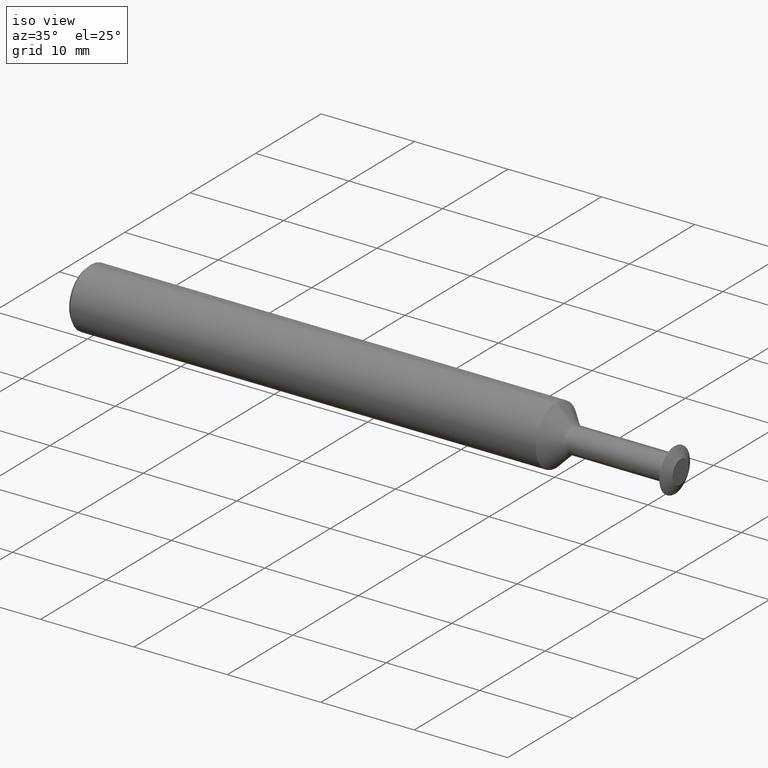
[diagram: clean part render]
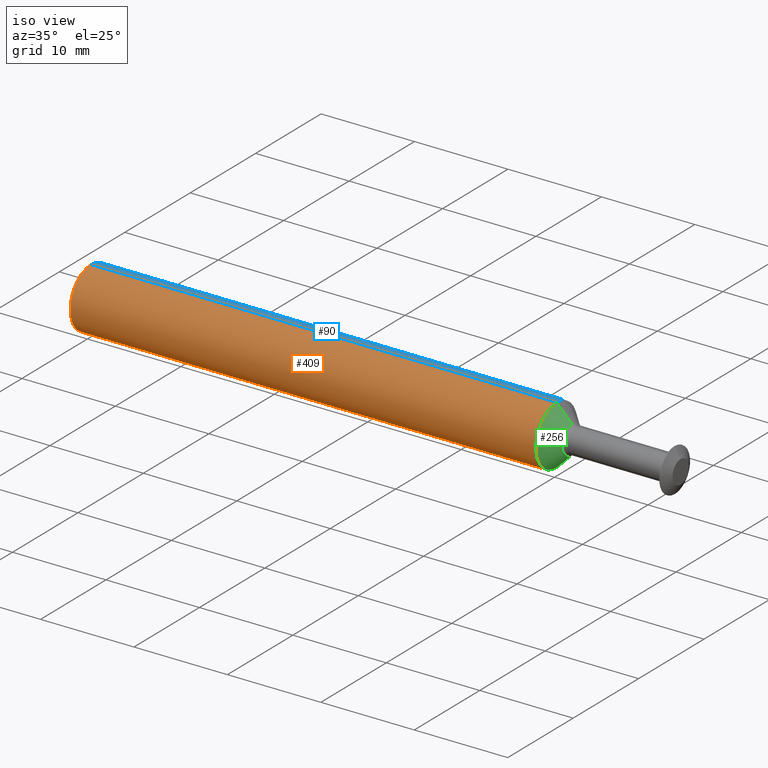
[diagram: same view with three faces highlighted in distinct colors, each labeled with its STEP entity id]
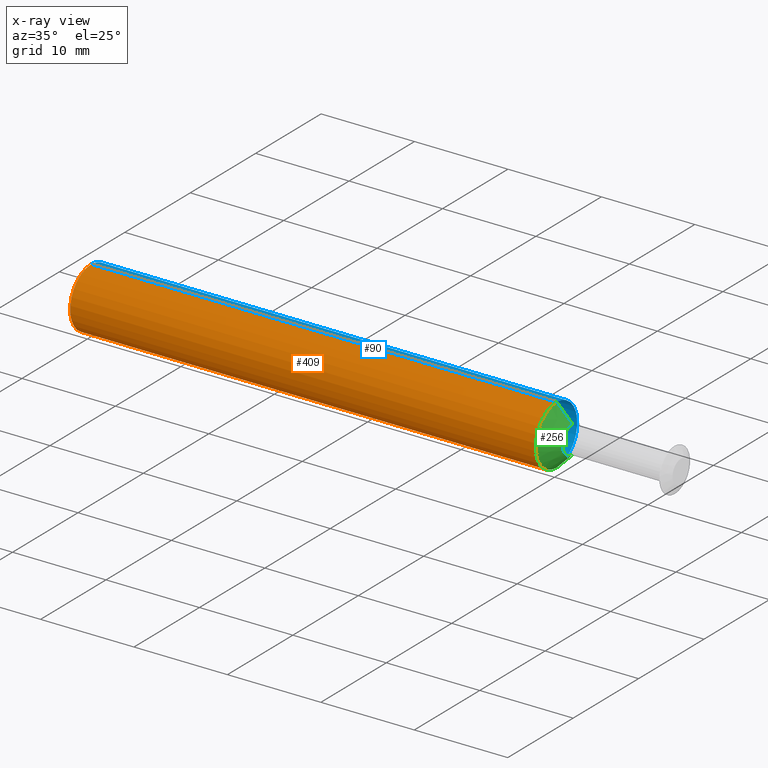
[diagram: x-ray of the same camera — body ghosted, the three highlighted faces saturated]
A machine part, iso view with three faces highlighted in distinct colors.
The next image is the same camera in x-ray (body ghosted, the three faces saturated) — at least one of them is partly hidden behind the body in this view.
Their STEP definitions:

[orange] entity #409 — the highlighted cylindrical surface (edge-blend (fillet) strip) has radius 3.1712 mm, axis along (-1, -0, -0).
#6 = DIRECTION ( 'NONE',  ( -1.000000000000000000, -0.0000000000000000000, -0.0000000000000000000 ) ) ;
#32 = DIRECTION ( 'NONE',  ( -1.000000000000000000, -0.0000000000000000000, -0.0000000000000000000 ) ) ;
#36 = CYLINDRICAL_SURFACE ( 'NONE', #224, 0.1248500000000000026 ) ;
#49 = DIRECTION ( 'NONE',  ( -1.000000000000000000, -0.0000000000000000000, -0.0000000000000000000 ) ) ;
#74 = CARTESIAN_POINT ( 'NONE',  ( 1.976797675422181433, 0.0000000000000000000, 0.0000000000000000000 ) ) ;
#86 = CARTESIAN_POINT ( 'NONE',  ( 0.01500000000000024925, 0.0000000000000000000, 0.1248500000000000026 ) ) ;
#100 = CARTESIAN_POINT ( 'NONE',  ( 1.976797675422181433, 1.528971528735470422E-17, -0.1248500000000000026 ) ) ;
#105 = EDGE_LOOP ( 'NONE', ( #450, #346, #376, #125 ) ) ;
#125 = ORIENTED_EDGE ( 'NONE', *, *, #456, .T. ) ;
#129 = CARTESIAN_POINT ( 'NONE',  ( 1.976797675422181433, 0.0000000000000000000, 0.1248500000000000026 ) ) ;
#142 = DIRECTION ( 'NONE',  ( -1.000000000000000000, -0.0000000000000000000, -0.0000000000000000000 ) ) ;
#147 = LINE ( 'NONE', #251, #217 ) ;
#150 = VERTEX_POINT ( 'NONE', #100 ) ;
#151 = EDGE_CURVE ( 'NONE', #272, #283, #488, .T. ) ;
#191 = DIRECTION ( 'NONE',  ( 0.0000000000000000000, 0.0000000000000000000, 1.000000000000000000 ) ) ;
#217 = VECTOR ( 'NONE', #49, 39.37007874015748143 ) ;
#224 = AXIS2_PLACEMENT_3D ( 'NONE', #433, #32, #372 ) ;
#246 = CARTESIAN_POINT ( 'NONE',  ( 0.01500000000000024925, 1.528971528735470422E-17, -0.1248500000000000026 ) ) ;
#251 = CARTESIAN_POINT ( 'NONE',  ( 0.0000000000000000000, 1.528971528735470422E-17, -0.1248500000000000026 ) ) ;
#266 = DIRECTION ( 'NONE',  ( 1.000000000000000000, 0.0000000000000000000, 0.0000000000000000000 ) ) ;
#272 = VERTEX_POINT ( 'NONE', #129 ) ;
#283 = VERTEX_POINT ( 'NONE', #86 ) ;
#294 = EDGE_CURVE ( 'NONE', #150, #497, #147, .T. ) ;
#326 = CARTESIAN_POINT ( 'NONE',  ( 0.01500000000000024925, 0.0000000000000000000, 0.0000000000000000000 ) ) ;
#340 = EDGE_CURVE ( 'NONE', #150, #272, #470, .T. ) ;
#346 = ORIENTED_EDGE ( 'NONE', *, *, #340, .T. ) ;
#360 = AXIS2_PLACEMENT_3D ( 'NONE', #326, #266, #429 ) ;
#372 = DIRECTION ( 'NONE',  ( 0.0000000000000000000, 0.0000000000000000000, 1.000000000000000000 ) ) ;
#376 = ORIENTED_EDGE ( 'NONE', *, *, #151, .T. ) ;
#393 = VECTOR ( 'NONE', #142, 39.37007874015748143 ) ;
#398 = CIRCLE ( 'NONE', #360, 0.1248500000000000026 ) ;
#409 = ADVANCED_FACE ( 'NONE', ( #478 ), #36, .T. ) ;
#429 = DIRECTION ( 'NONE',  ( 0.0000000000000000000, 0.0000000000000000000, -1.000000000000000000 ) ) ;
#433 = CARTESIAN_POINT ( 'NONE',  ( 0.0000000000000000000, 0.0000000000000000000, 0.0000000000000000000 ) ) ;
#450 = ORIENTED_EDGE ( 'NONE', *, *, #294, .F. ) ;
#456 = EDGE_CURVE ( 'NONE', #283, #497, #398, .T. ) ;
#459 = CARTESIAN_POINT ( 'NONE',  ( 0.0000000000000000000, 0.0000000000000000000, 0.1248500000000000026 ) ) ;
#470 = CIRCLE ( 'NONE', #491, 0.1248500000000000026 ) ;
#478 = FACE_OUTER_BOUND ( 'NONE', #105, .T. ) ;
#488 = LINE ( 'NONE', #459, #393 ) ;
#491 = AXIS2_PLACEMENT_3D ( 'NONE', #74, #6, #191 ) ;
#497 = VERTEX_POINT ( 'NONE', #246 ) ;

[blue] entity #90 — the highlighted cylindrical surface (edge-blend (fillet) strip) has radius 3.1712 mm, axis along (-1, -0, -0).
#49 = DIRECTION ( 'NONE',  ( -1.000000000000000000, -0.0000000000000000000, -0.0000000000000000000 ) ) ;
#86 = CARTESIAN_POINT ( 'NONE',  ( 0.01500000000000024925, 0.0000000000000000000, 0.1248500000000000026 ) ) ;
#90 = ADVANCED_FACE ( 'NONE', ( #290 ), #247, .T. ) ;
#95 = AXIS2_PLACEMENT_3D ( 'NONE', #309, #269, #357 ) ;
#100 = CARTESIAN_POINT ( 'NONE',  ( 1.976797675422181433, 1.528971528735470422E-17, -0.1248500000000000026 ) ) ;
#103 = AXIS2_PLACEMENT_3D ( 'NONE', #377, #424, #225 ) ;
#129 = CARTESIAN_POINT ( 'NONE',  ( 1.976797675422181433, 0.0000000000000000000, 0.1248500000000000026 ) ) ;
#142 = DIRECTION ( 'NONE',  ( -1.000000000000000000, -0.0000000000000000000, -0.0000000000000000000 ) ) ;
#147 = LINE ( 'NONE', #251, #217 ) ;
#150 = VERTEX_POINT ( 'NONE', #100 ) ;
#151 = EDGE_CURVE ( 'NONE', #272, #283, #488, .T. ) ;
#184 = ORIENTED_EDGE ( 'NONE', *, *, #294, .T. ) ;
#217 = VECTOR ( 'NONE', #49, 39.37007874015748143 ) ;
#225 = DIRECTION ( 'NONE',  ( 0.0000000000000000000, 0.0000000000000000000, 1.000000000000000000 ) ) ;
#229 = DIRECTION ( 'NONE',  ( -1.000000000000000000, -0.0000000000000000000, -0.0000000000000000000 ) ) ;
#230 = AXIS2_PLACEMENT_3D ( 'NONE', #321, #229, #387 ) ;
#246 = CARTESIAN_POINT ( 'NONE',  ( 0.01500000000000024925, 1.528971528735470422E-17, -0.1248500000000000026 ) ) ;
#247 = CYLINDRICAL_SURFACE ( 'NONE', #103, 0.1248500000000000026 ) ;
#251 = CARTESIAN_POINT ( 'NONE',  ( 0.0000000000000000000, 1.528971528735470422E-17, -0.1248500000000000026 ) ) ;
#269 = DIRECTION ( 'NONE',  ( 1.000000000000000000, 0.0000000000000000000, 0.0000000000000000000 ) ) ;
#272 = VERTEX_POINT ( 'NONE', #129 ) ;
#283 = VERTEX_POINT ( 'NONE', #86 ) ;
#290 = FACE_OUTER_BOUND ( 'NONE', #291, .T. ) ;
#291 = EDGE_LOOP ( 'NONE', ( #305, #184, #466, #405 ) ) ;
#294 = EDGE_CURVE ( 'NONE', #150, #497, #147, .T. ) ;
#305 = ORIENTED_EDGE ( 'NONE', *, *, #422, .T. ) ;
#309 = CARTESIAN_POINT ( 'NONE',  ( 0.01500000000000024925, 0.0000000000000000000, 0.0000000000000000000 ) ) ;
#317 = CIRCLE ( 'NONE', #95, 0.1248500000000000026 ) ;
#321 = CARTESIAN_POINT ( 'NONE',  ( 1.976797675422181433, 0.0000000000000000000, 0.0000000000000000000 ) ) ;
#357 = DIRECTION ( 'NONE',  ( 0.0000000000000000000, 0.0000000000000000000, -1.000000000000000000 ) ) ;
#377 = CARTESIAN_POINT ( 'NONE',  ( 0.0000000000000000000, 0.0000000000000000000, 0.0000000000000000000 ) ) ;
#379 = EDGE_CURVE ( 'NONE', #497, #283, #317, .T. ) ;
#387 = DIRECTION ( 'NONE',  ( 0.0000000000000000000, 0.0000000000000000000, 1.000000000000000000 ) ) ;
#393 = VECTOR ( 'NONE', #142, 39.37007874015748143 ) ;
#405 = ORIENTED_EDGE ( 'NONE', *, *, #151, .F. ) ;
#422 = EDGE_CURVE ( 'NONE', #272, #150, #461, .T. ) ;
#424 = DIRECTION ( 'NONE',  ( -1.000000000000000000, -0.0000000000000000000, -0.0000000000000000000 ) ) ;
#459 = CARTESIAN_POINT ( 'NONE',  ( 0.0000000000000000000, 0.0000000000000000000, 0.1248500000000000026 ) ) ;
#461 = CIRCLE ( 'NONE', #230, 0.1248500000000000026 ) ;
#466 = ORIENTED_EDGE ( 'NONE', *, *, #379, .T. ) ;
#488 = LINE ( 'NONE', #459, #393 ) ;
#497 = VERTEX_POINT ( 'NONE', #246 ) ;

[green] entity #256 — the highlighted conical surface has half-angle 45 deg.
#6 = DIRECTION ( 'NONE',  ( -1.000000000000000000, -0.0000000000000000000, -0.0000000000000000000 ) ) ;
#10 = DIRECTION ( 'NONE',  ( -0.7071067811865482389, 0.0000000000000000000, 0.7071067811865469066 ) ) ;
#16 = AXIS2_PLACEMENT_3D ( 'NONE', #490, #425, #18 ) ;
#18 = DIRECTION ( 'NONE',  ( 0.0000000000000000000, 0.0000000000000000000, 1.000000000000000000 ) ) ;
#24 = CARTESIAN_POINT ( 'NONE',  ( 2.042325344951845256, 7.264890212845911207E-18, -0.05932233047033651924 ) ) ;
#57 = VERTEX_POINT ( 'NONE', #280 ) ;
#74 = CARTESIAN_POINT ( 'NONE',  ( 1.976797675422181433, 0.0000000000000000000, 0.0000000000000000000 ) ) ;
#89 = EDGE_CURVE ( 'NONE', #237, #150, #161, .T. ) ;
#100 = CARTESIAN_POINT ( 'NONE',  ( 1.976797675422181433, 1.528971528735470422E-17, -0.1248500000000000026 ) ) ;
#114 = CONICAL_SURFACE ( 'NONE', #343, 0.05932233047033651924, 0.7853981633974473908 ) ;
#129 = CARTESIAN_POINT ( 'NONE',  ( 1.976797675422181433, 0.0000000000000000000, 0.1248500000000000026 ) ) ;
#132 = ORIENTED_EDGE ( 'NONE', *, *, #89, .F. ) ;
#150 = VERTEX_POINT ( 'NONE', #100 ) ;
#156 = LINE ( 'NONE', #174, #299 ) ;
#158 = EDGE_LOOP ( 'NONE', ( #132, #364, #483, #282 ) ) ;
#161 = LINE ( 'NONE', #24, #260 ) ;
#166 = DIRECTION ( 'NONE',  ( 0.0000000000000000000, 0.0000000000000000000, 1.000000000000000000 ) ) ;
#174 = CARTESIAN_POINT ( 'NONE',  ( 2.042325344951845256, 0.0000000000000000000, 0.05932233047033651924 ) ) ;
#191 = DIRECTION ( 'NONE',  ( 0.0000000000000000000, 0.0000000000000000000, 1.000000000000000000 ) ) ;
#208 = CIRCLE ( 'NONE', #16, 0.05932233047033651924 ) ;
#237 = VERTEX_POINT ( 'NONE', #288 ) ;
#256 = ADVANCED_FACE ( 'NONE', ( #416 ), #114, .T. ) ;
#260 = VECTOR ( 'NONE', #301, 39.37007874015748143 ) ;
#267 = EDGE_CURVE ( 'NONE', #57, #272, #156, .T. ) ;
#272 = VERTEX_POINT ( 'NONE', #129 ) ;
#280 = CARTESIAN_POINT ( 'NONE',  ( 2.042325344951845256, 0.0000000000000000000, 0.05932233047033641515 ) ) ;
#282 = ORIENTED_EDGE ( 'NONE', *, *, #340, .F. ) ;
#284 = DIRECTION ( 'NONE',  ( -1.000000000000000000, -0.0000000000000000000, -0.0000000000000000000 ) ) ;
#288 = CARTESIAN_POINT ( 'NONE',  ( 2.042325344951845256, 7.264890212845898881E-18, -0.05932233047033641515 ) ) ;
#299 = VECTOR ( 'NONE', #10, 39.37007874015748143 ) ;
#301 = DIRECTION ( 'NONE',  ( -0.7071067811865482389, 8.659560562354925463E-17, -0.7071067811865469066 ) ) ;
#328 = CARTESIAN_POINT ( 'NONE',  ( 2.042325344951845256, 0.0000000000000000000, 0.0000000000000000000 ) ) ;
#340 = EDGE_CURVE ( 'NONE', #150, #272, #470, .T. ) ;
#343 = AXIS2_PLACEMENT_3D ( 'NONE', #328, #284, #166 ) ;
#351 = EDGE_CURVE ( 'NONE', #237, #57, #208, .T. ) ;
#364 = ORIENTED_EDGE ( 'NONE', *, *, #351, .T. ) ;
#416 = FACE_OUTER_BOUND ( 'NONE', #158, .T. ) ;
#425 = DIRECTION ( 'NONE',  ( -1.000000000000000000, -0.0000000000000000000, -0.0000000000000000000 ) ) ;
#470 = CIRCLE ( 'NONE', #491, 0.1248500000000000026 ) ;
#483 = ORIENTED_EDGE ( 'NONE', *, *, #267, .T. ) ;
#490 = CARTESIAN_POINT ( 'NONE',  ( 2.042325344951845256, 0.0000000000000000000, 0.0000000000000000000 ) ) ;
#491 = AXIS2_PLACEMENT_3D ( 'NONE', #74, #6, #191 ) ;